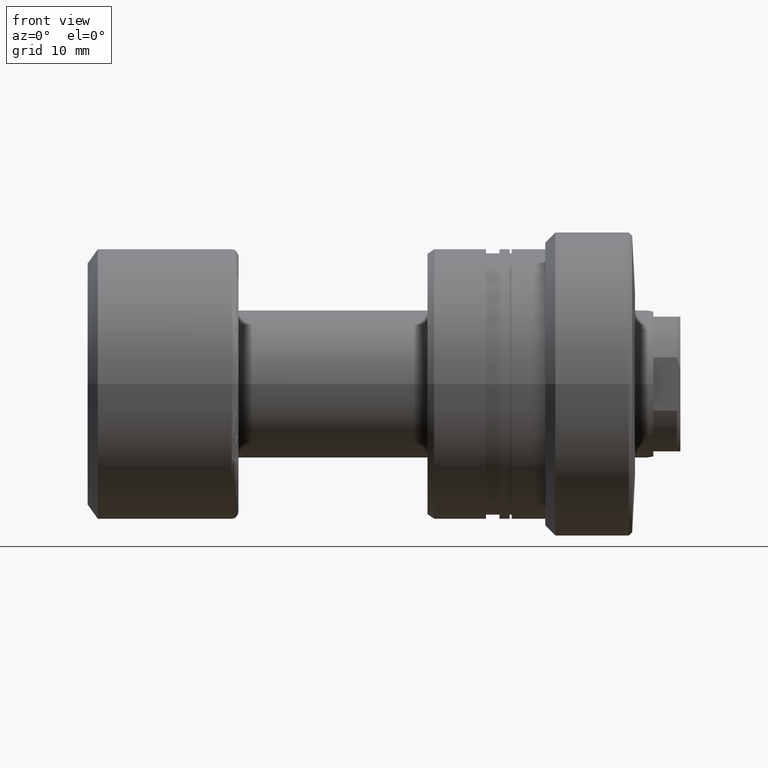
[diagram: clean part render]
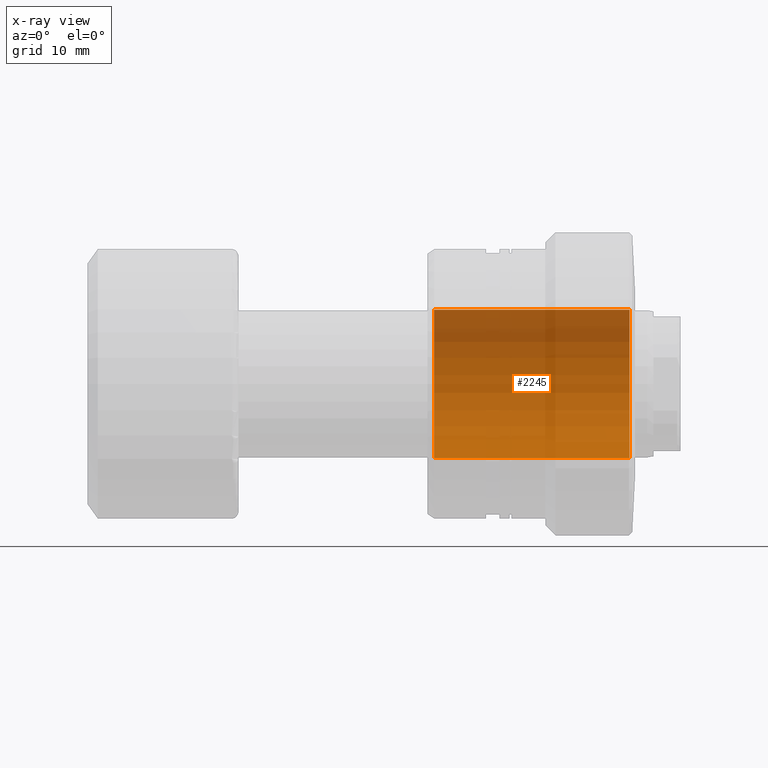
[diagram: x-ray — body ghosted, one internal face saturated and labeled with its STEP entity id]
A machine part, front view, then the same camera in x-ray: the body is ghosted and one INTERNAL B-rep face — a face not visible from any outside direction — is saturated and labeled: STEP entity #2245.
In plain terms, the highlighted cylindrical surface (partial cylindrical patch) has radius 11 mm, axis along (1, 0, 0).
Its self-contained STEP definition (entity closure, byte-faithful):
#4 = ORIENTED_EDGE ( 'NONE', *, *, #2332, .T. ) ;
#91 = ORIENTED_EDGE ( 'NONE', *, *, #1494, .T. ) ;
#127 = CARTESIAN_POINT ( 'NONE',  ( -1.500000000000000000, 1.347111479062088405E-15, 11.00000000000000000 ) ) ;
#271 = AXIS2_PLACEMENT_3D ( 'NONE', #635, #441, #1365 ) ;
#289 = ORIENTED_EDGE ( 'NONE', *, *, #839, .F. ) ;
#304 = VECTOR ( 'NONE', #870, 1000.000000000000000 ) ;
#353 = VERTEX_POINT ( 'NONE', #1507 ) ;
#437 = VECTOR ( 'NONE', #1662, 1000.000000000000000 ) ;
#441 = DIRECTION ( 'NONE',  ( -1.000000000000000000, 0.000000000000000000, 0.000000000000000000 ) ) ;
#493 = EDGE_CURVE ( 'NONE', #1970, #353, #1057, .T. ) ;
#635 = CARTESIAN_POINT ( 'NONE',  ( -30.50000000000002132, 0.000000000000000000, 0.000000000000000000 ) ) ;
#724 = FACE_OUTER_BOUND ( 'NONE', #2116, .T. ) ;
#806 = CIRCLE ( 'NONE', #271, 11.00000000000000000 ) ;
#839 = EDGE_CURVE ( 'NONE', #1491, #1237, #1478, .T. ) ;
#870 = DIRECTION ( 'NONE',  ( 1.000000000000000000, -0.000000000000000000, -0.000000000000000000 ) ) ;
#935 = CARTESIAN_POINT ( 'NONE',  ( -62.61269837220812207, 1.347111479062088405E-15, 11.00000000000000000 ) ) ;
#1001 = DIRECTION ( 'NONE',  ( 0.000000000000000000, 0.000000000000000000, -1.000000000000000000 ) ) ;
#1057 = LINE ( 'NONE', #1585, #304 ) ;
#1072 = CIRCLE ( 'NONE', #1496, 11.00000000000000000 ) ;
#1109 = AXIS2_PLACEMENT_3D ( 'NONE', #1461, #2192, #1263 ) ;
#1237 = VERTEX_POINT ( 'NONE', #127 ) ;
#1263 = DIRECTION ( 'NONE',  ( 0.000000000000000000, 0.000000000000000000, -1.000000000000000000 ) ) ;
#1308 = DIRECTION ( 'NONE',  ( 1.000000000000000000, 0.000000000000000000, 0.000000000000000000 ) ) ;
#1365 = DIRECTION ( 'NONE',  ( 0.000000000000000000, 0.000000000000000000, -1.000000000000000000 ) ) ;
#1461 = CARTESIAN_POINT ( 'NONE',  ( -62.61269837220812207, 0.000000000000000000, 0.000000000000000000 ) ) ;
#1478 = LINE ( 'NONE', #935, #437 ) ;
#1491 = VERTEX_POINT ( 'NONE', #2094 ) ;
#1494 = EDGE_CURVE ( 'NONE', #1491, #1970, #806, .T. ) ;
#1496 = AXIS2_PLACEMENT_3D ( 'NONE', #1865, #1308, #1001 ) ;
#1507 = CARTESIAN_POINT ( 'NONE',  ( -1.500000000000000000, 0.000000000000000000, -11.00000000000000000 ) ) ;
#1585 = CARTESIAN_POINT ( 'NONE',  ( -62.61269837220812207, 0.000000000000000000, -11.00000000000000000 ) ) ;
#1662 = DIRECTION ( 'NONE',  ( 1.000000000000000000, -0.000000000000000000, -0.000000000000000000 ) ) ;
#1865 = CARTESIAN_POINT ( 'NONE',  ( -1.500000000000000000, 0.000000000000000000, 0.000000000000000000 ) ) ;
#1970 = VERTEX_POINT ( 'NONE', #2051 ) ;
#1991 = CYLINDRICAL_SURFACE ( 'NONE', #1109, 11.00000000000000000 ) ;
#2051 = CARTESIAN_POINT ( 'NONE',  ( -30.50000000000002132, 0.000000000000000000, -11.00000000000000000 ) ) ;
#2094 = CARTESIAN_POINT ( 'NONE',  ( -30.50000000000002132, 1.347111479062088405E-15, 11.00000000000000000 ) ) ;
#2116 = EDGE_LOOP ( 'NONE', ( #289, #91, #2127, #4 ) ) ;
#2127 = ORIENTED_EDGE ( 'NONE', *, *, #493, .T. ) ;
#2192 = DIRECTION ( 'NONE',  ( 1.000000000000000000, -0.000000000000000000, -0.000000000000000000 ) ) ;
#2245 = ADVANCED_FACE ( 'NONE', ( #724 ), #1991, .F. ) ;
#2332 = EDGE_CURVE ( 'NONE', #353, #1237, #1072, .T. ) ;